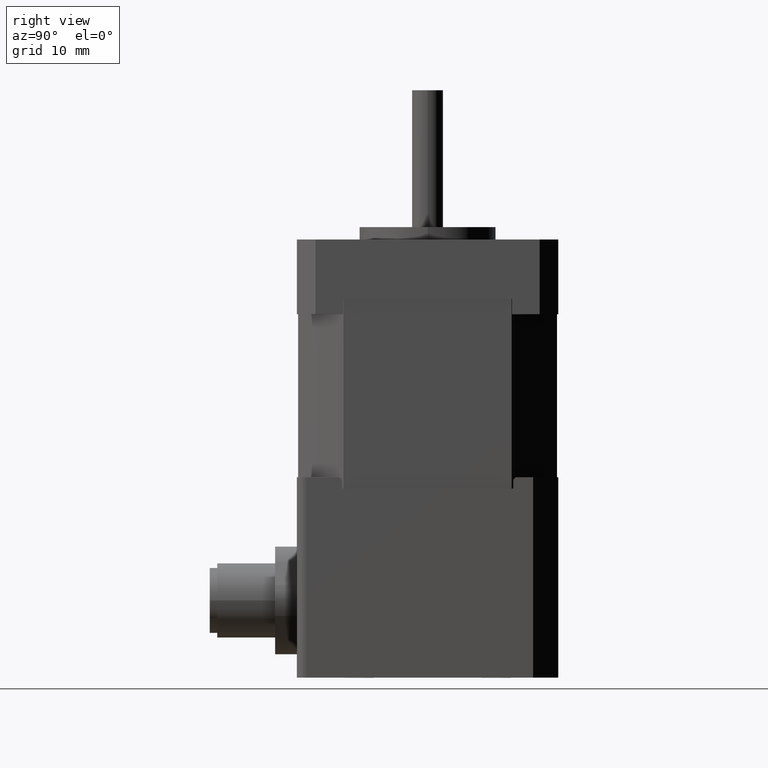
[diagram: clean part render]
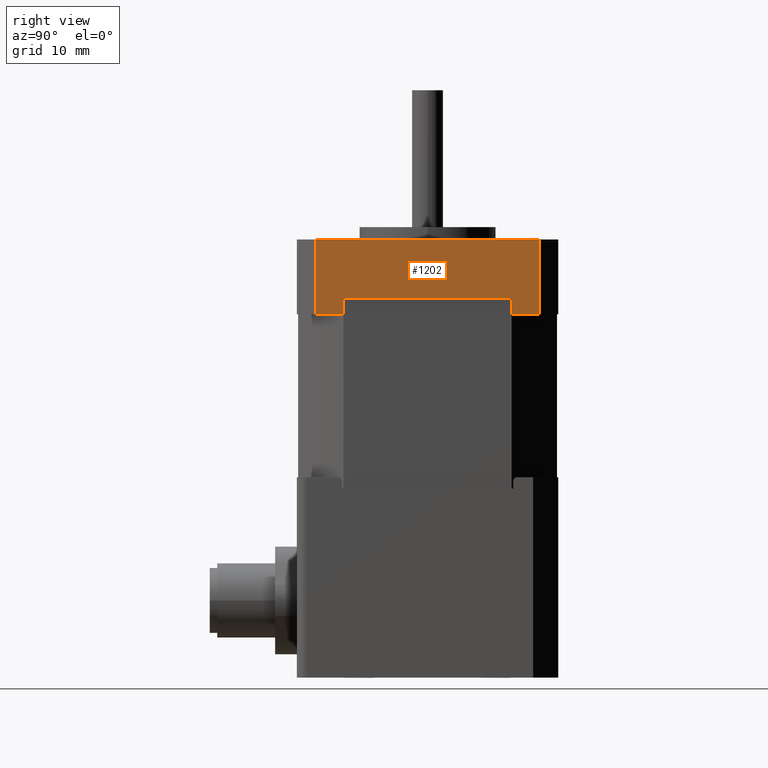
[diagram: same view with one face highlighted and labeled with its STEP entity id]
A machine part, right view. The second image highlights one B-rep face of the part: STEP entity #1202.
In plain terms, the highlighted planar face has unit normal (1, -0, -0).
Its self-contained STEP definition (entity closure, byte-faithful):
#971=CARTESIAN_POINT('',(-21.0,-18.000000000000007,0.0));
#972=VERTEX_POINT('',#971);
#979=CARTESIAN_POINT('',(-21.0,18.000000000000007,0.0));
#980=VERTEX_POINT('',#979);
#981=CARTESIAN_POINT('',(-21.0,18.000000000000007,0.0));
#982=DIRECTION('',(0.0,-1.0,0.0));
#983=VECTOR('',#982,36.000000000000014);
#984=LINE('',#981,#983);
#985=EDGE_CURVE('',#980,#972,#984,.T.);
#1123=CARTESIAN_POINT('',(-21.0,-18.000000000000007,12.000000000000004));
#1124=VERTEX_POINT('',#1123);
#1131=CARTESIAN_POINT('',(-21.0,-18.0,12.000000000000004));
#1132=DIRECTION('',(0.0,0.0,-1.0));
#1133=VECTOR('',#1132,12.000000000000004);
#1134=LINE('',#1131,#1133);
#1135=EDGE_CURVE('',#1124,#972,#1134,.T.);
#1147=CARTESIAN_POINT('',(-21.0,-21.0,0.0));
#1148=DIRECTION('',(-1.0,0.0,0.0));
#1149=DIRECTION('',(0.0,0.0,1.0));
#1150=AXIS2_PLACEMENT_3D('',#1147,#1148,#1149);
#1151=PLANE('',#1150);
#1152=ORIENTED_EDGE('',*,*,#1135,.F.);
#1153=CARTESIAN_POINT('',(-21.0,-13.564659966250536,12.000000000000004));
#1154=VERTEX_POINT('',#1153);
#1155=CARTESIAN_POINT('',(-21.0,-18.000000000000007,12.000000000000004));
#1156=DIRECTION('',(0.0,1.0,0.0));
#1157=VECTOR('',#1156,4.435340033749471);
#1158=LINE('',#1155,#1157);
#1159=EDGE_CURVE('',#1124,#1154,#1158,.T.);
#1160=ORIENTED_EDGE('',*,*,#1159,.T.);
#1161=CARTESIAN_POINT('',(-21.0,-13.564659966250536,9.500000000000004));
#1162=VERTEX_POINT('',#1161);
#1163=CARTESIAN_POINT('',(-21.0,-13.564659966250536,12.000000000000004));
#1164=DIRECTION('',(0.0,0.0,-1.0));
#1165=VECTOR('',#1164,2.500000000000000);
#1166=LINE('',#1163,#1165);
#1167=EDGE_CURVE('',#1154,#1162,#1166,.T.);
#1168=ORIENTED_EDGE('',*,*,#1167,.T.);
#1169=CARTESIAN_POINT('',(-21.0,13.564659966250536,9.500000000000004));
#1170=VERTEX_POINT('',#1169);
#1171=CARTESIAN_POINT('',(-21.0,-13.564659966250536,9.500000000000004));
#1172=DIRECTION('',(0.0,1.0,0.0));
#1173=VECTOR('',#1172,27.129319932501073);
#1174=LINE('',#1171,#1173);
#1175=EDGE_CURVE('',#1162,#1170,#1174,.T.);
#1176=ORIENTED_EDGE('',*,*,#1175,.T.);
#1177=CARTESIAN_POINT('',(-21.0,13.564659966250536,12.000000000000004));
#1178=VERTEX_POINT('',#1177);
#1179=CARTESIAN_POINT('',(-21.0,13.564659966250536,9.500000000000004));
#1180=DIRECTION('',(0.0,0.0,1.0));
#1181=VECTOR('',#1180,2.500000000000000);
#1182=LINE('',#1179,#1181);
#1183=EDGE_CURVE('',#1170,#1178,#1182,.T.);
#1184=ORIENTED_EDGE('',*,*,#1183,.T.);
#1185=CARTESIAN_POINT('',(-21.0,18.000000000000007,12.000000000000004));
#1186=VERTEX_POINT('',#1185);
#1187=CARTESIAN_POINT('',(-21.0,13.564659966250536,12.000000000000004));
#1188=DIRECTION('',(0.0,1.0,0.0));
#1189=VECTOR('',#1188,4.435340033749471);
#1190=LINE('',#1187,#1189);
#1191=EDGE_CURVE('',#1178,#1186,#1190,.T.);
#1192=ORIENTED_EDGE('',*,*,#1191,.T.);
#1193=CARTESIAN_POINT('',(-21.0,18.000000000000007,0.0));
#1194=DIRECTION('',(0.0,0.0,1.0));
#1195=VECTOR('',#1194,12.000000000000004);
#1196=LINE('',#1193,#1195);
#1197=EDGE_CURVE('',#980,#1186,#1196,.T.);
#1198=ORIENTED_EDGE('',*,*,#1197,.F.);
#1199=ORIENTED_EDGE('',*,*,#985,.T.);
#1200=EDGE_LOOP('',(#1152,#1160,#1168,#1176,#1184,#1192,#1198,#1199));
#1201=FACE_OUTER_BOUND('',#1200,.T.);
#1202=ADVANCED_FACE('',(#1201),#1151,.T.);